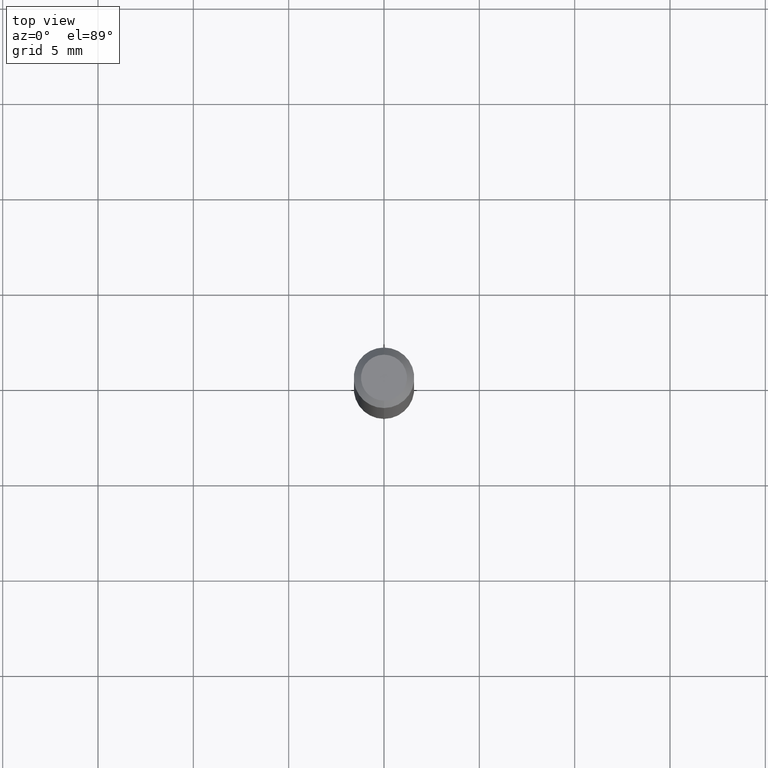
[diagram: clean part render]
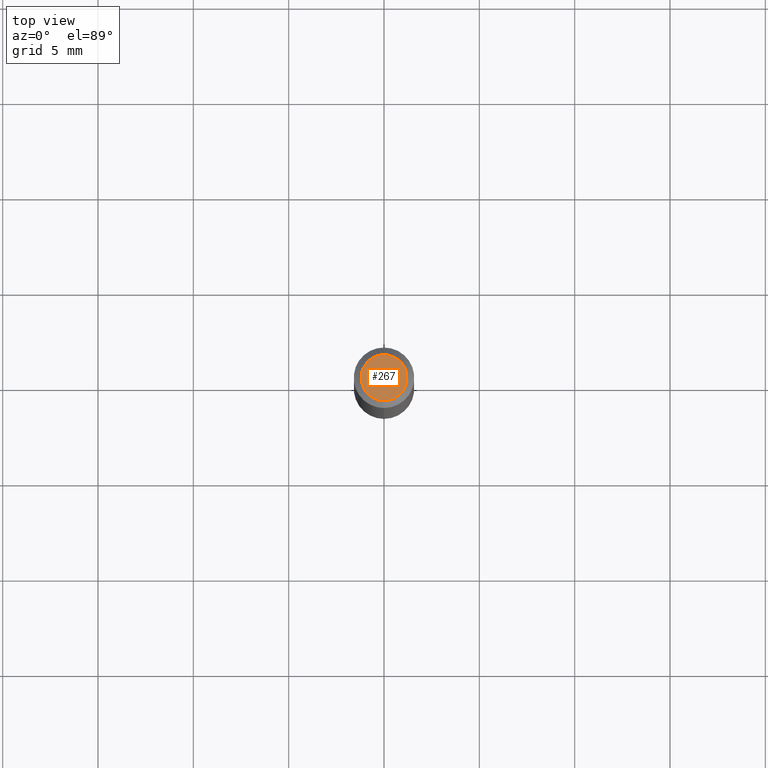
[diagram: same view with one face highlighted and labeled with its STEP entity id]
A machine part, top view. The second image highlights one B-rep face of the part: STEP entity #267.
In plain terms, the highlighted planar face has unit normal (0, -0, -1).
Its self-contained STEP definition (entity closure, byte-faithful):
#31 = DIRECTION ( 'NONE',  ( -2.445416699617084767E-29, 3.491555958414317221E-15, 1.000000000000000000 ) ) ;
#66 = CARTESIAN_POINT ( 'NONE',  ( 1.601666985731479033E-45, -2.286853569087802124E-31, -6.549668962276554042E-17 ) ) ;
#70 = CARTESIAN_POINT ( 'NONE',  ( 3.840629472727447874E-16, 0.04749999999999999362, -2.313455976474456035E-16 ) ) ;
#95 = AXIS2_PLACEMENT_3D ( 'NONE', #66, #503, #146 ) ;
#109 = PLANE ( 'NONE',  #348 ) ;
#114 = CARTESIAN_POINT ( 'NONE',  ( 3.316907271900976096E-16, 0.04749999999999999362, -1.985972528360628209E-16 ) ) ;
#121 = CARTESIAN_POINT ( 'NONE',  ( -3.773273898774340269E-16, -0.04749999999999999362, 1.003522184019144980E-16 ) ) ;
#146 = DIRECTION ( 'NONE',  ( -6.982962677686266711E-15, -1.000000000000000000, 3.491555958414317615E-15 ) ) ;
#190 = EDGE_CURVE ( 'NONE', #394, #293, #414, .T. ) ;
#191 = DIRECTION ( 'NONE',  ( 2.445416699617084767E-29, -3.491555958414317221E-15, -1.000000000000000000 ) ) ;
#238 = EDGE_CURVE ( 'NONE', #293, #394, #342, .T. ) ;
#267 = ADVANCED_FACE ( 'NONE', ( #277 ), #109, .F. ) ;
#271 = DIRECTION ( 'NONE',  ( 6.982962677686265922E-15, 1.000000000000000000, -3.491555958414317221E-15 ) ) ;
#277 = FACE_OUTER_BOUND ( 'NONE', #367, .T. ) ;
#293 = VERTEX_POINT ( 'NONE', #70 ) ;
#297 = AXIS2_PLACEMENT_3D ( 'NONE', #421, #31, #461 ) ;
#342 = CIRCLE ( 'NONE', #297, 0.04749999999999999362 ) ;
#348 = AXIS2_PLACEMENT_3D ( 'NONE', #114, #191, #271 ) ;
#367 = EDGE_LOOP ( 'NONE', ( #507, #397 ) ) ;
#394 = VERTEX_POINT ( 'NONE', #121 ) ;
#397 = ORIENTED_EDGE ( 'NONE', *, *, #190, .T. ) ;
#414 = CIRCLE ( 'NONE', #95, 0.04749999999999999362 ) ;
#421 = CARTESIAN_POINT ( 'NONE',  ( 1.601666985731479033E-45, -2.286853569087802124E-31, -6.549668962276554042E-17 ) ) ;
#461 = DIRECTION ( 'NONE',  ( -6.982962677686266711E-15, -1.000000000000000000, 3.491555958414317615E-15 ) ) ;
#503 = DIRECTION ( 'NONE',  ( -2.445416699617084767E-29, 3.491555958414317221E-15, 1.000000000000000000 ) ) ;
#507 = ORIENTED_EDGE ( 'NONE', *, *, #238, .T. ) ;